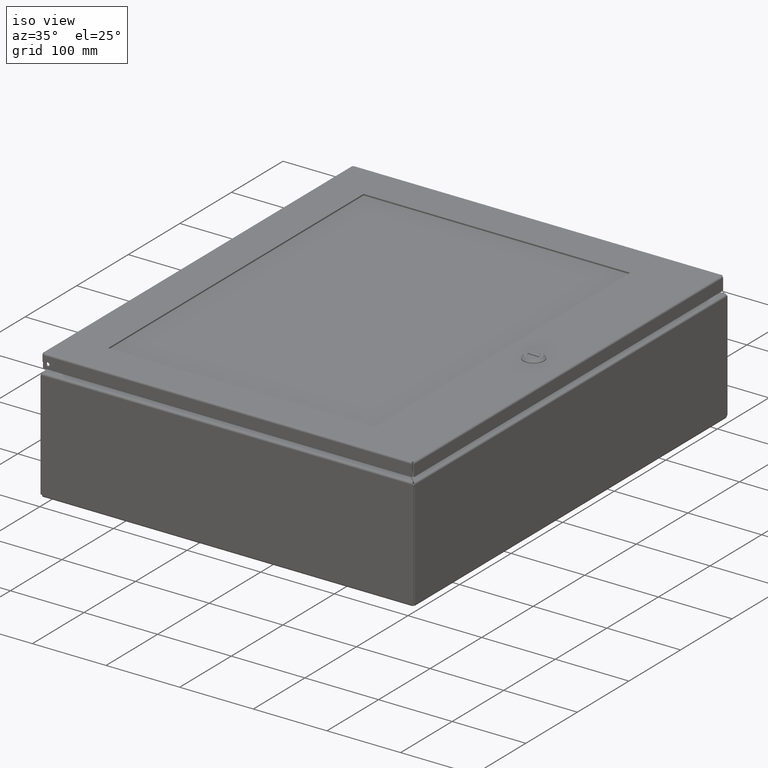
[diagram: clean part render]
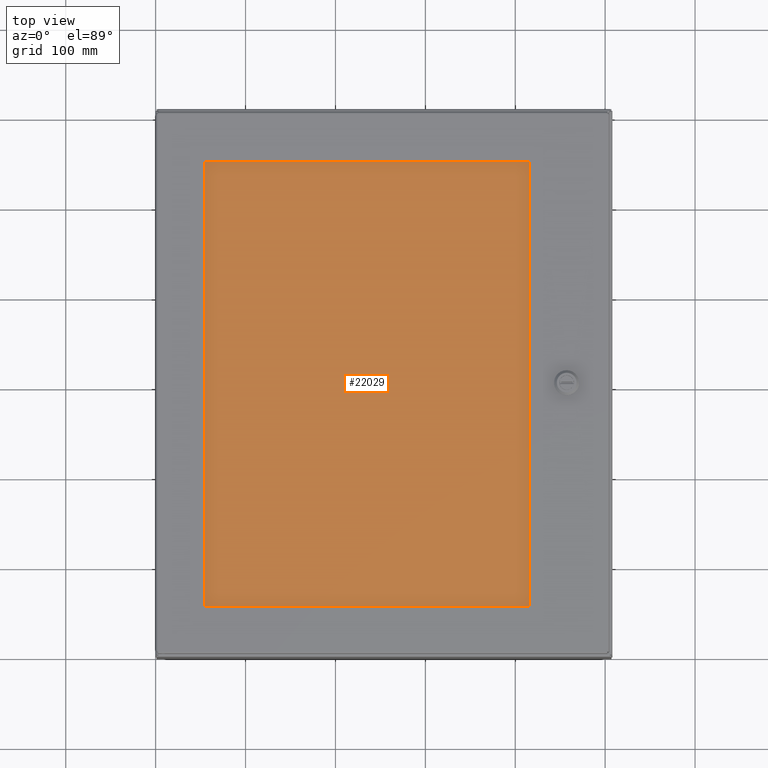
[diagram: tour spotlight — one face highlighted and labeled with its STEP entity id]
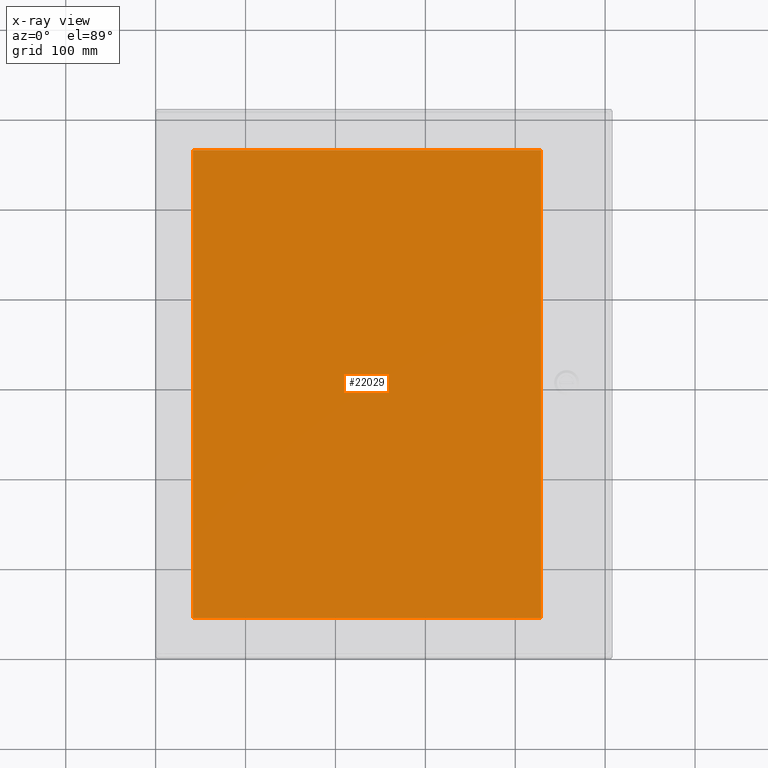
[diagram: x-ray of the same camera — body ghosted, this tour face saturated]
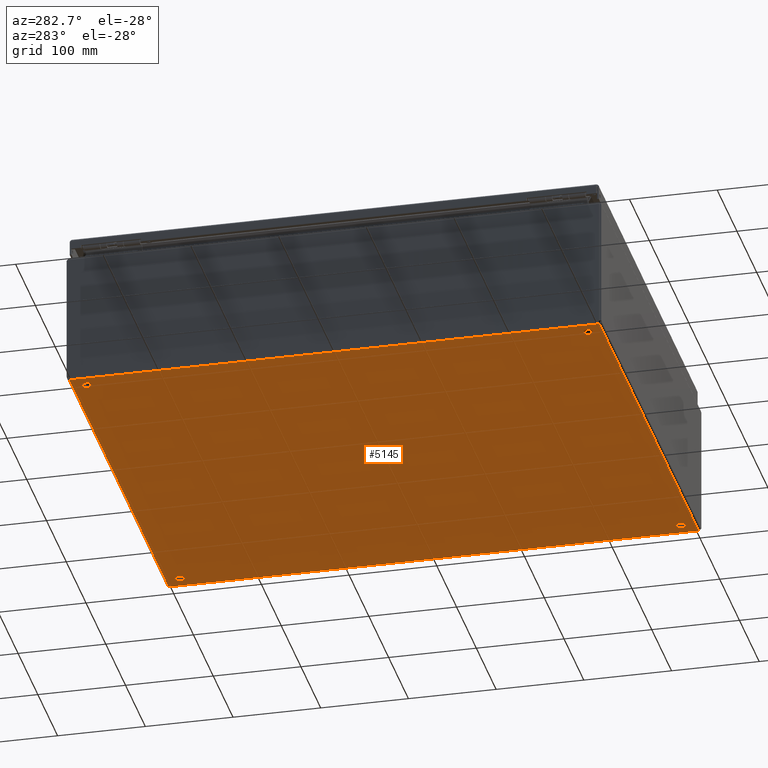
[diagram: tour spotlight — one face highlighted and labeled with its STEP entity id]
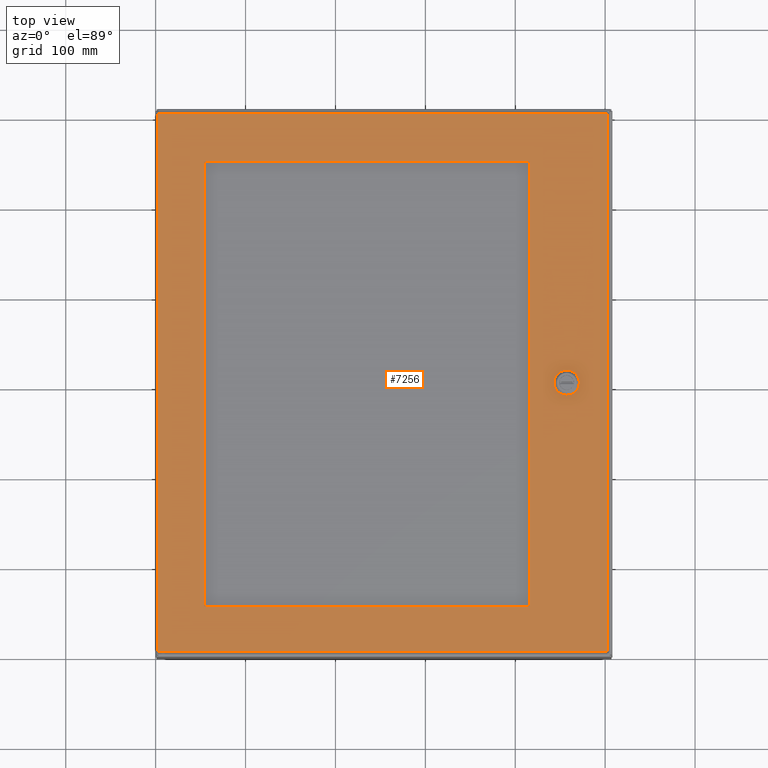
[diagram: tour spotlight — one face highlighted and labeled with its STEP entity id]
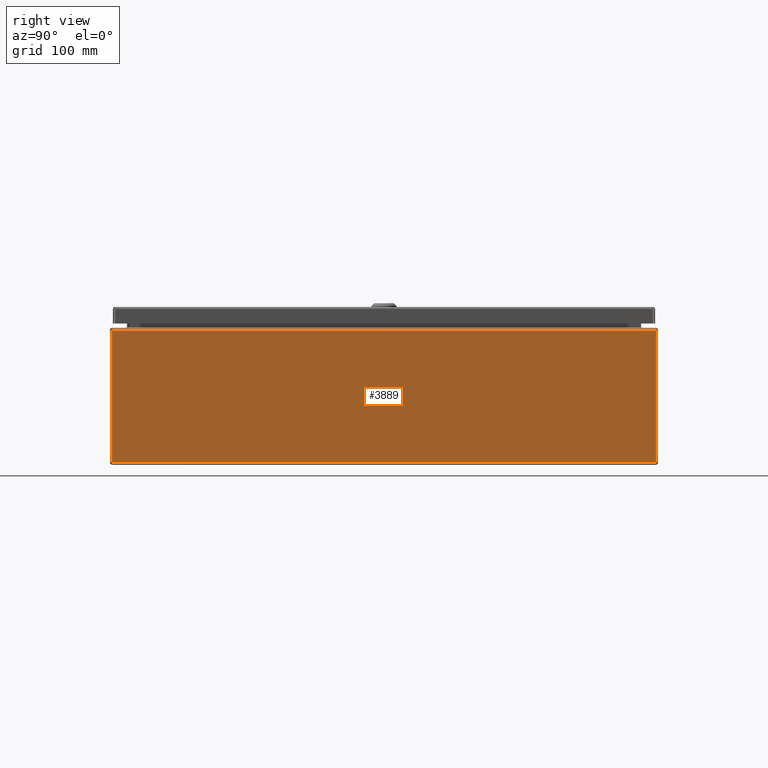
[diagram: tour spotlight — one face highlighted and labeled with its STEP entity id]
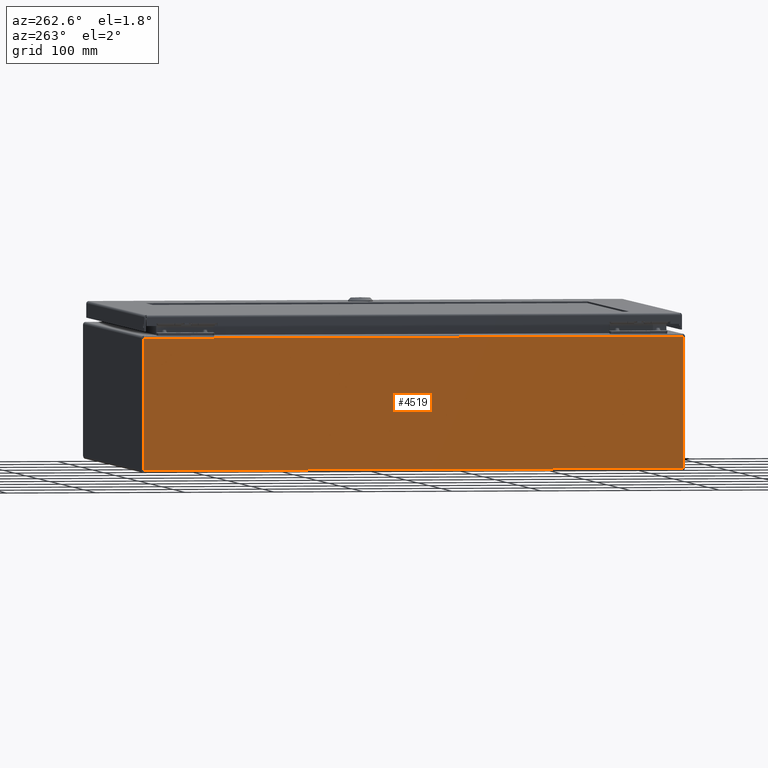
[diagram: tour spotlight — one face highlighted and labeled with its STEP entity id]
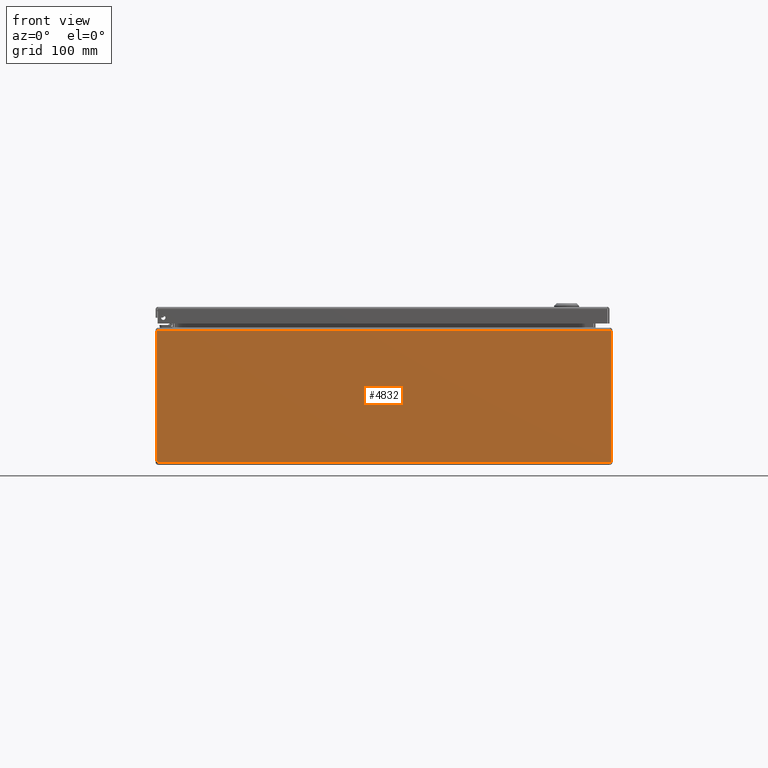
[diagram: tour spotlight — one face highlighted and labeled with its STEP entity id]
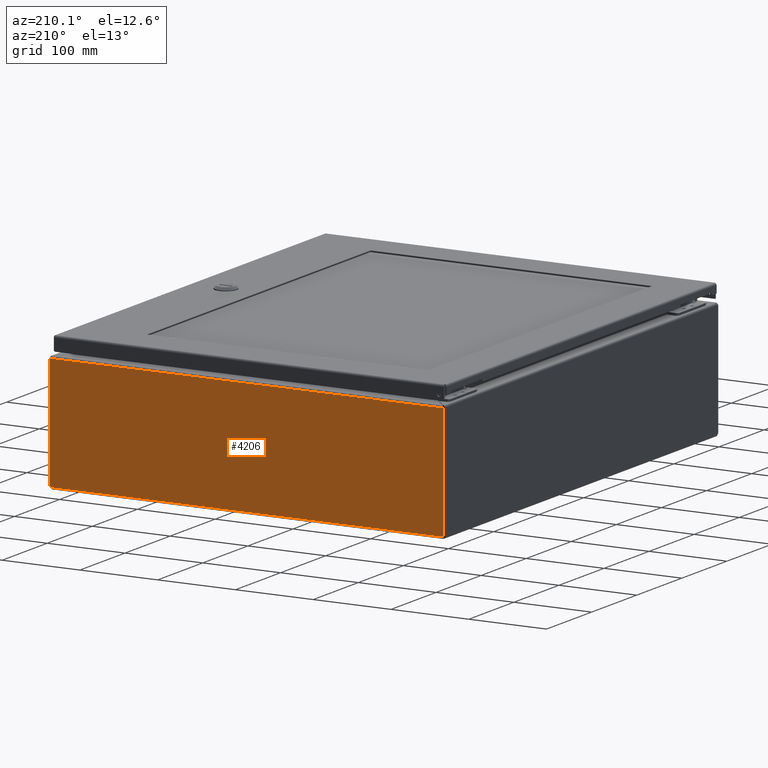
[diagram: tour spotlight — one face highlighted and labeled with its STEP entity id]
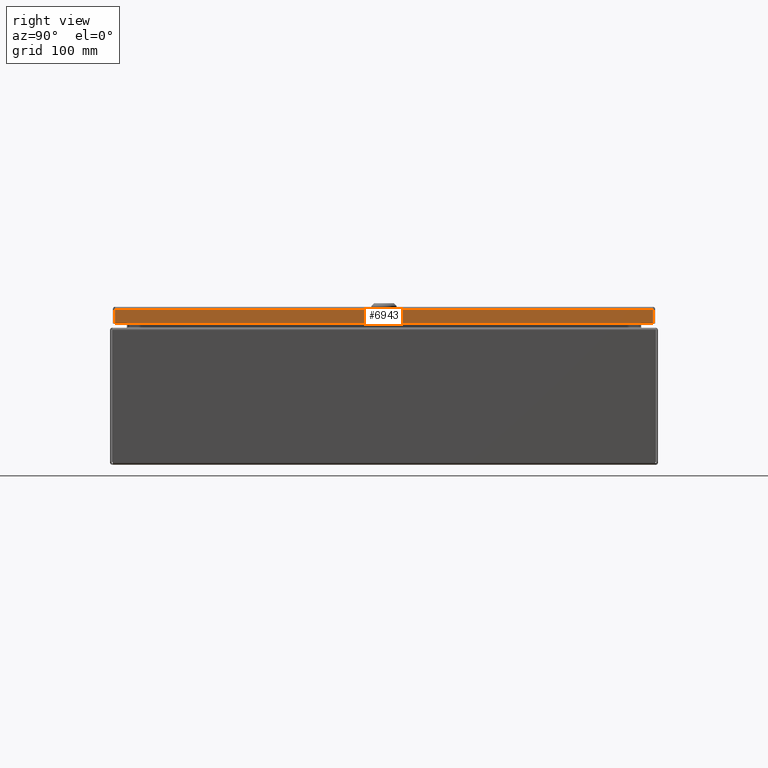
[diagram: tour spotlight — one face highlighted and labeled with its STEP entity id]
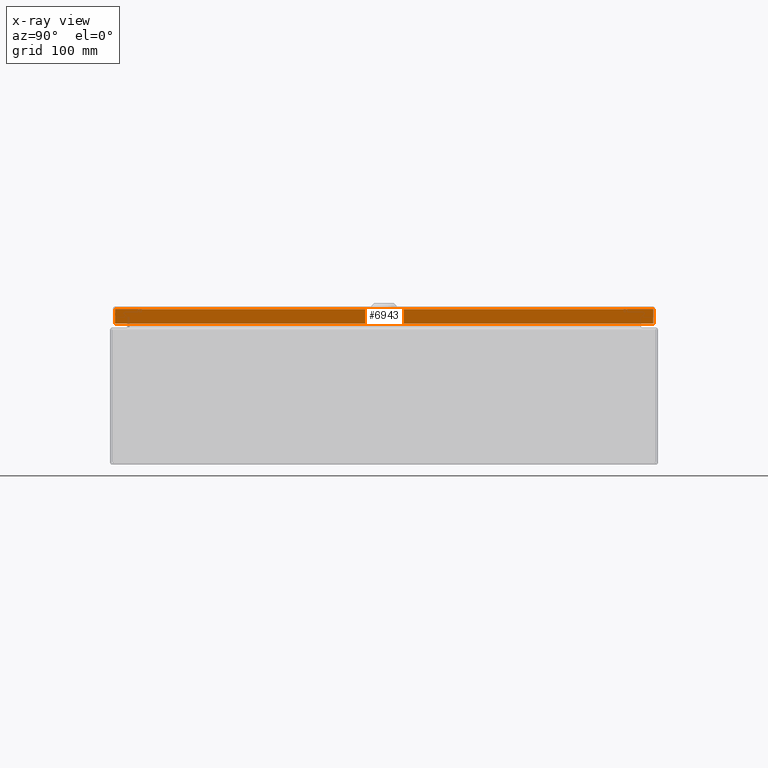
[diagram: x-ray of the same camera — body ghosted, this tour face saturated]
A machine part: a face-by-face anatomy tour. The part has 2085 B-rep faces; the first image is the clean iso view, then the 8 largest visible faces are spotlighted one at a time (largest first), each with its STEP entity span.

Face 1 — top view, entity #22029. An x-ray twin of the same camera follows (body ghosted, this face saturated) — the face is partly hidden behind the body. In plain terms, the highlighted planar face has unit normal (-0, -0, 1).
Definition (entity closure, byte-faithful):
#21887=CARTESIAN_POINT('',(0.0,0.0,0.250000000000000));
#21888=VERTEX_POINT('',#21887);
#21889=CARTESIAN_POINT('',(-6.276315E-015,20.500000000000000,0.250000000000000));
#21890=VERTEX_POINT('',#21889);
#21891=CARTESIAN_POINT('',(-7.888609E-031,0.0,0.250000000000000));
#21892=DIRECTION('',(0.0,1.0,0.0));
#21893=VECTOR('',#21892,20.500000000000000);
#21894=LINE('',#21891,#21893);
#21895=EDGE_CURVE('',#21888,#21890,#21894,.T.);
#21927=CARTESIAN_POINT('',(15.249999999999995,20.500000000000000,0.250000000000000));
#21928=VERTEX_POINT('',#21927);
#21929=CARTESIAN_POINT('',(-5.329071E-015,20.500000000000004,0.250000000000000));
#21930=DIRECTION('',(1.0,0.0,0.0));
#21931=VECTOR('',#21930,15.250000000000000);
#21932=LINE('',#21929,#21931);
#21933=EDGE_CURVE('',#21890,#21928,#21932,.T.);
#21958=CARTESIAN_POINT('',(15.250000000000000,1.552876E-031,0.250000000000000));
#21959=VERTEX_POINT('',#21958);
#21960=CARTESIAN_POINT('',(15.249999999999995,20.500000000000000,0.250000000000000));
#21961=DIRECTION('',(0.0,-1.0,0.0));
#21962=VECTOR('',#21961,20.500000000000000);
#21963=LINE('',#21960,#21962);
#21964=EDGE_CURVE('',#21928,#21959,#21963,.T.);
#21989=CARTESIAN_POINT('',(15.250000000000000,1.552876E-031,0.250000000000000));
#21990=DIRECTION('',(-1.0,0.0,0.0));
#21991=VECTOR('',#21990,15.250000000000000);
#21992=LINE('',#21989,#21991);
#21993=EDGE_CURVE('',#21959,#21888,#21992,.T.);
#22018=CARTESIAN_POINT('',(7.624999999999999,10.250000000000000,0.250000000000000));
#22019=DIRECTION('',(0.0,0.0,1.0));
#22020=DIRECTION('',(1.0,0.0,0.0));
#22021=AXIS2_PLACEMENT_3D('',#22018,#22019,#22020);
#22022=PLANE('',#22021);
#22023=ORIENTED_EDGE('',*,*,#21895,.F.);
#22024=ORIENTED_EDGE('',*,*,#21993,.F.);
#22025=ORIENTED_EDGE('',*,*,#21964,.F.);
#22026=ORIENTED_EDGE('',*,*,#21933,.F.);
#22027=EDGE_LOOP('',(#22023,#22024,#22025,#22026));
#22028=FACE_OUTER_BOUND('',#22027,.T.);
#22029=ADVANCED_FACE('',(#22028),#22022,.T.);

Face 2 — auxiliary view, entity #5145. In plain terms, the highlighted planar face has unit normal (0, 0, 1).
Definition (entity closure, byte-faithful):
#247=CARTESIAN_POINT('',(0.531249999999996,0.750000000000002,0.0));
#248=VERTEX_POINT('',#247);
#249=CARTESIAN_POINT('',(0.749999999999996,0.750000000000002,0.0));
#250=DIRECTION('',(0.0,0.0,1.0));
#251=DIRECTION('',(1.0,0.0,0.0));
#252=AXIS2_PLACEMENT_3D('',#249,#250,#251);
#253=CIRCLE('',#252,0.218750000000000);
#254=EDGE_CURVE('',#248,#248,#253,.T.);
#275=CARTESIAN_POINT('',(19.031249999999982,0.750000000000002,0.0));
#276=VERTEX_POINT('',#275);
#277=CARTESIAN_POINT('',(19.249999999999982,0.750000000000002,0.0));
#278=DIRECTION('',(0.0,0.0,1.0));
#279=DIRECTION('',(1.0,0.0,0.0));
#280=AXIS2_PLACEMENT_3D('',#277,#278,#279);
#281=CIRCLE('',#280,0.218750000000000);
#282=EDGE_CURVE('',#276,#276,#281,.T.);
#303=CARTESIAN_POINT('',(0.531249999999996,23.250000000000004,0.0));
#304=VERTEX_POINT('',#303);
#305=CARTESIAN_POINT('',(0.749999999999996,23.250000000000004,0.0));
#306=DIRECTION('',(0.0,0.0,1.0));
#307=DIRECTION('',(1.0,0.0,0.0));
#308=AXIS2_PLACEMENT_3D('',#305,#306,#307);
#309=CIRCLE('',#308,0.218750000000000);
#310=EDGE_CURVE('',#304,#304,#309,.T.);
#331=CARTESIAN_POINT('',(19.031249999999982,23.250000000000004,0.0));
#332=VERTEX_POINT('',#331);
#333=CARTESIAN_POINT('',(19.249999999999982,23.250000000000004,0.0));
#334=DIRECTION('',(0.0,0.0,1.0));
#335=DIRECTION('',(1.0,0.0,0.0));
#336=AXIS2_PLACEMENT_3D('',#333,#334,#335);
#337=CIRCLE('',#336,0.218750000000000);
#338=EDGE_CURVE('',#332,#332,#337,.T.);
#3923=CARTESIAN_POINT('',(19.894749999999991,23.886393473394307,0.0));
#3924=VERTEX_POINT('',#3923);
#4021=CARTESIAN_POINT('',(19.894749999999995,0.113606526605712,0.0));
#4022=VERTEX_POINT('',#4021);
#4065=CARTESIAN_POINT('',(19.894749999999991,23.886393473394307,0.0));
#4066=DIRECTION('',(0.0,-1.0,0.0));
#4067=VECTOR('',#4066,23.772786946788592);
#4068=LINE('',#4065,#4067);
#4069=EDGE_CURVE('',#3924,#4022,#4068,.T.);
#4240=CARTESIAN_POINT('',(0.113606526605698,23.894750000000002,2.797412E-015));
#4241=VERTEX_POINT('',#4240);
#4338=CARTESIAN_POINT('',(19.886393473394293,23.894750000000002,0.0));
#4339=VERTEX_POINT('',#4338);
#4382=CARTESIAN_POINT('',(0.113606526605698,23.894750000000002,0.0));
#4383=DIRECTION('',(1.0,0.0,0.0));
#4384=VECTOR('',#4383,19.772786946788596);
#4385=LINE('',#4382,#4384);
#4386=EDGE_CURVE('',#4241,#4339,#4385,.T.);
#4553=CARTESIAN_POINT('',(0.105250000000002,0.113606526605707,0.0));
#4554=VERTEX_POINT('',#4553);
#4651=CARTESIAN_POINT('',(0.105249999999995,23.886393473394300,0.0));
#4652=VERTEX_POINT('',#4651);
#4695=CARTESIAN_POINT('',(0.105250000000002,0.113606526605707,0.0));
#4696=DIRECTION('',(0.0,1.0,0.0));
#4697=VECTOR('',#4696,23.772786946788592);
#4698=LINE('',#4695,#4697);
#4699=EDGE_CURVE('',#4554,#4652,#4698,.T.);
#4866=CARTESIAN_POINT('',(19.886393473394286,0.105250000000001,0.0));
#4867=VERTEX_POINT('',#4866);
#4922=CARTESIAN_POINT('',(0.113606526605708,0.105250000000001,0.0));
#4923=VERTEX_POINT('',#4922);
#4937=CARTESIAN_POINT('',(19.886393473394286,0.105250000000001,0.0));
#4938=DIRECTION('',(-1.0,0.0,0.0));
#4939=VECTOR('',#4938,19.772786946788578);
#4940=LINE('',#4937,#4939);
#4941=EDGE_CURVE('',#4867,#4923,#4940,.T.);
#5032=CARTESIAN_POINT('',(0.061526884243666,0.061526884243666,0.0));
#5033=DIRECTION('',(0.0,0.0,1.0));
#5034=DIRECTION('',(1.0,0.0,0.0));
#5035=AXIS2_PLACEMENT_3D('',#5032,#5033,#5034);
#5036=CIRCLE('',#5035,0.068000000000000);
#5037=EDGE_CURVE('',#4923,#4554,#5036,.T.);
#5094=CARTESIAN_POINT('',(19.938473115756331,0.061526884243670,0.0));
#5095=DIRECTION('',(0.0,0.0,1.0));
#5096=DIRECTION('',(1.0,0.0,0.0));
#5097=AXIS2_PLACEMENT_3D('',#5094,#5095,#5096);
#5098=CIRCLE('',#5097,0.068000000000000);
#5099=EDGE_CURVE('',#4022,#4867,#5098,.T.);
#5106=CARTESIAN_POINT('',(9.999999999999996,12.000000000000004,0.0));
#5107=DIRECTION('',(0.0,0.0,1.0));
#5108=DIRECTION('',(1.0,0.0,0.0));
#5109=AXIS2_PLACEMENT_3D('',#5106,#5107,#5108);
#5110=PLANE('',#5109);
#5111=ORIENTED_EDGE('',*,*,#4941,.T.);
#5112=ORIENTED_EDGE('',*,*,#5037,.T.);
#5113=ORIENTED_EDGE('',*,*,#4699,.T.);
#5114=CARTESIAN_POINT('',(0.061526884243656,23.938473115756338,0.0));
#5115=DIRECTION('',(0.0,0.0,1.0));
#5116=DIRECTION('',(1.0,0.0,0.0));
#5117=AXIS2_PLACEMENT_3D('',#5114,#5115,#5116);
#5118=CIRCLE('',#5117,0.068000000000000);
#5119=EDGE_CURVE('',#4652,#4241,#5118,.T.);
#5120=ORIENTED_EDGE('',*,*,#5119,.T.);
#5121=ORIENTED_EDGE('',*,*,#4386,.T.);
#5122=CARTESIAN_POINT('',(19.938473115756331,23.938473115756342,0.0));
#5123=DIRECTION('',(0.0,0.0,1.0));
#5124=DIRECTION('',(1.0,0.0,0.0));
#5125=AXIS2_PLACEMENT_3D('',#5122,#5123,#5124);
#5126=CIRCLE('',#5125,0.068000000000000);
#5127=EDGE_CURVE('',#4339,#3924,#5126,.T.);
#5128=ORIENTED_EDGE('',*,*,#5127,.T.);
#5129=ORIENTED_EDGE('',*,*,#4069,.T.);
#5130=ORIENTED_EDGE('',*,*,#5099,.T.);
#5131=EDGE_LOOP('',(#5111,#5112,#5113,#5120,#5121,#5128,#5129,#5130));
#5132=FACE_OUTER_BOUND('',#5131,.T.);
#5133=ORIENTED_EDGE('',*,*,#254,.T.);
#5134=EDGE_LOOP('',(#5133));
#5135=FACE_BOUND('',#5134,.T.);
#5136=ORIENTED_EDGE('',*,*,#282,.T.);
#5137=EDGE_LOOP('',(#5136));
#5138=FACE_BOUND('',#5137,.T.);
#5139=ORIENTED_EDGE('',*,*,#310,.T.);
#5140=EDGE_LOOP('',(#5139));
#5141=FACE_BOUND('',#5140,.T.);
#5142=ORIENTED_EDGE('',*,*,#338,.T.);
#5143=EDGE_LOOP('',(#5142));
#5144=FACE_BOUND('',#5143,.T.);
#5145=ADVANCED_FACE('',(#5132,#5135,#5138,#5141,#5144),#5110,.F.);

Face 3 — top view, entity #7256. In plain terms, the highlighted planar face has unit normal (-0, 0, -1).
Definition (entity closure, byte-faithful):
#5448=CARTESIAN_POINT('',(17.750000000000000,21.562500000000011,0.0));
#5449=VERTEX_POINT('',#5448);
#5456=CARTESIAN_POINT('',(17.749999999999989,2.062500000000010,0.0));
#5457=VERTEX_POINT('',#5456);
#5458=CARTESIAN_POINT('',(17.749999999999993,2.062500000000009,0.0));
#5459=DIRECTION('',(0.0,1.0,0.0));
#5460=VECTOR('',#5459,19.500000000000000);
#5461=LINE('',#5458,#5460);
#5462=EDGE_CURVE('',#5457,#5449,#5461,.T.);
#5487=CARTESIAN_POINT('',(3.500000000000003,2.062500000000013,0.0));
#5488=VERTEX_POINT('',#5487);
#5489=CARTESIAN_POINT('',(3.500000000000004,2.062500000000013,0.0));
#5490=DIRECTION('',(1.0,0.0,0.0));
#5491=VECTOR('',#5490,14.249999999999986);
#5492=LINE('',#5489,#5491);
#5493=EDGE_CURVE('',#5488,#5457,#5492,.T.);
#5518=CARTESIAN_POINT('',(3.499999999999997,21.562500000000011,0.0));
#5519=VERTEX_POINT('',#5518);
#5520=CARTESIAN_POINT('',(3.499999999999997,21.562500000000007,0.0));
#5521=DIRECTION('',(0.0,-1.0,0.0));
#5522=VECTOR('',#5521,19.499999999999993);
#5523=LINE('',#5520,#5522);
#5524=EDGE_CURVE('',#5519,#5488,#5523,.T.);
#5547=CARTESIAN_POINT('',(17.750000000000000,21.562500000000011,0.0));
#5548=DIRECTION('',(-1.0,0.0,0.0));
#5549=VECTOR('',#5548,14.250000000000004);
#5550=LINE('',#5547,#5549);
#5551=EDGE_CURVE('',#5449,#5519,#5550,.T.);
#5573=CARTESIAN_POINT('',(2.087624081420700,12.275000000000000,0.0));
#5574=VERTEX_POINT('',#5573);
#5581=CARTESIAN_POINT('',(2.274999999999992,12.087624081420714,0.0));
#5582=VERTEX_POINT('',#5581);
#5583=CARTESIAN_POINT('',(1.874999999999996,11.874999999999998,0.0));
#5584=DIRECTION('',(0.0,0.0,1.0));
#5585=DIRECTION('',(-0.469368833158288,-0.883002207505523,0.0));
#5586=AXIS2_PLACEMENT_3D('',#5583,#5584,#5585);
#5587=CIRCLE('',#5586,0.453000000000000);
#5588=EDGE_CURVE('',#5582,#5574,#5587,.T.);
#5613=CARTESIAN_POINT('',(2.274999999999992,11.662375918579283,0.0));
#5614=VERTEX_POINT('',#5613);
#5615=CARTESIAN_POINT('',(2.274999999999992,11.662375918579283,0.0));
#5616=DIRECTION('',(0.0,1.0,0.0));
#5617=VECTOR('',#5616,0.425248162841431);
#5618=LINE('',#5615,#5617);
#5619=EDGE_CURVE('',#5614,#5582,#5618,.T.);
#5645=CARTESIAN_POINT('',(2.087624081420711,11.475000000000001,0.0));
#5646=VERTEX_POINT('',#5645);
#5647=CARTESIAN_POINT('',(1.874999999999996,11.874999999999998,0.0));
#5648=DIRECTION('',(0.0,0.0,1.0));
#5649=DIRECTION('',(-0.883002207505511,0.469368833158312,0.0));
#5650=AXIS2_PLACEMENT_3D('',#5647,#5648,#5649);
#5651=CIRCLE('',#5650,0.453000000000000);
#5652=EDGE_CURVE('',#5646,#5614,#5651,.T.);
#5677=CARTESIAN_POINT('',(1.662375918579281,11.475000000000001,0.0));
#5678=VERTEX_POINT('',#5677);
#5679=CARTESIAN_POINT('',(1.662375918579280,11.475000000000001,0.0));
#5680=DIRECTION('',(1.0,0.0,0.0));
#5681=VECTOR('',#5680,0.425248162841431);
#5682=LINE('',#5679,#5681);
#5683=EDGE_CURVE('',#5678,#5646,#5682,.T.);
#5709=CARTESIAN_POINT('',(1.474999999999992,11.662375918579297,0.0));
#5710=VERTEX_POINT('',#5709);
#5711=CARTESIAN_POINT('',(1.874999999999996,11.874999999999998,0.0));
#5712=DIRECTION('',(0.0,0.0,1.0));
#5713=DIRECTION('',(0.469368833158311,0.883002207505511,0.0));
#5714=AXIS2_PLACEMENT_3D('',#5711,#5712,#5713);
#5715=CIRCLE('',#5714,0.453000000000000);
#5716=EDGE_CURVE('',#5710,#5678,#5715,.T.);
#5741=CARTESIAN_POINT('',(1.474999999999992,12.087624081420699,0.0));
#5742=VERTEX_POINT('',#5741);
#5743=CARTESIAN_POINT('',(1.474999999999992,12.087624081420699,0.0));
#5744=DIRECTION('',(0.0,-1.0,0.0));
#5745=VECTOR('',#5744,0.425248162841402);
#5746=LINE('',#5743,#5745);
#5747=EDGE_CURVE('',#5742,#5710,#5746,.T.);
#5773=CARTESIAN_POINT('',(1.662375918579291,12.275000000000000,0.0));
#5774=VERTEX_POINT('',#5773);
#5775=CARTESIAN_POINT('',(1.874999999999996,11.874999999999998,0.0));
#5776=DIRECTION('',(0.0,0.0,1.0));
#5777=DIRECTION('',(0.883002207505527,-0.469368833158281,0.0));
#5778=AXIS2_PLACEMENT_3D('',#5775,#5776,#5777);
#5779=CIRCLE('',#5778,0.453000000000000);
#5780=EDGE_CURVE('',#5774,#5742,#5779,.T.);
#5803=CARTESIAN_POINT('',(2.087624081420699,12.275000000000000,0.0));
#5804=DIRECTION('',(-1.0,0.0,0.0));
#5805=VECTOR('',#5804,0.425248162841408);
#5806=LINE('',#5803,#5805);
#5807=EDGE_CURVE('',#5574,#5774,#5806,.T.);
#6258=CARTESIAN_POINT('',(19.769750000000002,0.105249999999998,-3.278218E-017));
#6259=VERTEX_POINT('',#6258);
#6270=CARTESIAN_POINT('',(19.769749999999995,23.644750000000009,-2.185478E-017));
#6271=VERTEX_POINT('',#6270);
#6272=CARTESIAN_POINT('',(19.769749999999995,23.644750000000009,0.0));
#6273=DIRECTION('',(0.0,-1.0,0.0));
#6274=VECTOR('',#6273,23.539500000000011);
#6275=LINE('',#6272,#6274);
#6276=EDGE_CURVE('',#6271,#6259,#6275,.T.);
#6428=CARTESIAN_POINT('',(0.105249999999999,0.105250000000000,-3.278218E-017));
#6429=VERTEX_POINT('',#6428);
#6440=CARTESIAN_POINT('',(19.769750000000002,0.105249999999998,0.0));
#6441=DIRECTION('',(-1.0,0.0,0.0));
#6442=VECTOR('',#6441,19.664500000000004);
#6443=LINE('',#6440,#6442);
#6444=EDGE_CURVE('',#6259,#6429,#6443,.T.);
#6705=CARTESIAN_POINT('',(0.105249999999990,23.644750000000005,-2.185478E-017));
#6706=VERTEX_POINT('',#6705);
#6717=CARTESIAN_POINT('',(0.105249999999999,0.105250000000000,0.0));
#6718=DIRECTION('',(0.0,1.0,0.0));
#6719=VECTOR('',#6718,23.539500000000004);
#6720=LINE('',#6717,#6719);
#6721=EDGE_CURVE('',#6429,#6706,#6720,.T.);
#6986=CARTESIAN_POINT('',(0.105249999999990,23.644750000000005,0.0));
#6987=DIRECTION('',(1.0,0.0,0.0));
#6988=VECTOR('',#6987,19.664500000000004);
#6989=LINE('',#6986,#6988);
#6990=EDGE_CURVE('',#6706,#6271,#6989,.T.);
#7229=CARTESIAN_POINT('',(9.937499999999995,11.875000000000002,0.0));
#7230=DIRECTION('',(0.0,0.0,1.0));
#7231=DIRECTION('',(1.0,0.0,0.0));
#7232=AXIS2_PLACEMENT_3D('',#7229,#7230,#7231);
#7233=PLANE('',#7232);
#7234=ORIENTED_EDGE('',*,*,#6276,.T.);
#7235=ORIENTED_EDGE('',*,*,#6444,.T.);
#7236=ORIENTED_EDGE('',*,*,#6721,.T.);
#7237=ORIENTED_EDGE('',*,*,#6990,.T.);
#7238=EDGE_LOOP('',(#7234,#7235,#7236,#7237));
#7239=FACE_OUTER_BOUND('',#7238,.T.);
#7240=ORIENTED_EDGE('',*,*,#5462,.T.);
#7241=ORIENTED_EDGE('',*,*,#5551,.T.);
#7242=ORIENTED_EDGE('',*,*,#5524,.T.);
#7243=ORIENTED_EDGE('',*,*,#5493,.T.);
#7244=EDGE_LOOP('',(#7240,#7241,#7242,#7243));
#7245=FACE_BOUND('',#7244,.T.);
#7246=ORIENTED_EDGE('',*,*,#5588,.T.);
#7247=ORIENTED_EDGE('',*,*,#5807,.T.);
#7248=ORIENTED_EDGE('',*,*,#5780,.T.);
#7249=ORIENTED_EDGE('',*,*,#5747,.T.);
#7250=ORIENTED_EDGE('',*,*,#5716,.T.);
#7251=ORIENTED_EDGE('',*,*,#5683,.T.);
#7252=ORIENTED_EDGE('',*,*,#5652,.T.);
#7253=ORIENTED_EDGE('',*,*,#5619,.T.);
#7254=EDGE_LOOP('',(#7246,#7247,#7248,#7249,#7250,#7251,#7252,#7253));
#7255=FACE_BOUND('',#7254,.T.);
#7256=ADVANCED_FACE('',(#7239,#7245,#7255),#7233,.F.);

Face 4 — right view, entity #3889. In plain terms, the highlighted planar face has unit normal (-1, 0, 0).
Definition (entity closure, byte-faithful):
#2701=CARTESIAN_POINT('',(20.000000000000011,23.914951456543665,5.894749999999996));
#2702=VERTEX_POINT('',#2701);
#2734=CARTESIAN_POINT('',(20.000000000000014,0.085048543456039,5.894749999999996));
#2735=VERTEX_POINT('',#2734);
#2749=CARTESIAN_POINT('',(20.000000000000014,23.914951456543665,5.894749999999998));
#2750=DIRECTION('',(0.0,-1.0,0.0));
#2751=VECTOR('',#2750,23.829902913087629);
#2752=LINE('',#2749,#2751);
#2753=EDGE_CURVE('',#2702,#2735,#2752,.T.);
#3404=CARTESIAN_POINT('',(20.000000000000021,0.080000000000002,5.894749999999998));
#3405=VERTEX_POINT('',#3404);
#3412=CARTESIAN_POINT('',(20.000000000000018,0.085048543456036,5.894749999999998));
#3413=DIRECTION('',(0.0,-1.0,0.0));
#3414=VECTOR('',#3413,0.005048543456038);
#3415=LINE('',#3412,#3414);
#3416=EDGE_CURVE('',#2735,#3405,#3415,.T.);
#3582=CARTESIAN_POINT('',(20.000000000000014,23.919999999999995,5.894749999999998));
#3583=VERTEX_POINT('',#3582);
#3584=CARTESIAN_POINT('',(20.000000000000014,23.919999999999995,5.894749999999998));
#3585=DIRECTION('',(0.0,-1.0,0.0));
#3586=VECTOR('',#3585,0.005048543456329);
#3587=LINE('',#3584,#3586);
#3588=EDGE_CURVE('',#3583,#2702,#3587,.T.);
#3613=CARTESIAN_POINT('',(19.999999999999989,23.920000000000002,0.126969561406606));
#3614=VERTEX_POINT('',#3613);
#3615=CARTESIAN_POINT('',(20.000000000000018,23.920000000000002,5.894749999999997));
#3616=DIRECTION('',(0.0,0.0,-1.0));
#3617=VECTOR('',#3616,5.767780438593391);
#3618=LINE('',#3615,#3617);
#3619=EDGE_CURVE('',#3583,#3614,#3618,.T.);
#3777=CARTESIAN_POINT('',(19.999999999999989,0.113606526605712,0.105249999999996));
#3778=VERTEX_POINT('',#3777);
#3785=CARTESIAN_POINT('',(19.999999999999993,0.080000000000006,0.126969561406606));
#3786=VERTEX_POINT('',#3785);
#3787=CARTESIAN_POINT('',(19.999999999999989,0.061526884243669,0.061526884243664));
#3788=DIRECTION('',(-1.0,0.0,0.0));
#3789=DIRECTION('',(0.0,0.0,1.0));
#3790=AXIS2_PLACEMENT_3D('',#3787,#3788,#3789);
#3791=CIRCLE('',#3790,0.068000000000000);
#3792=EDGE_CURVE('',#3786,#3778,#3791,.T.);
#3856=CARTESIAN_POINT('',(20.000000000000004,12.000000000000002,3.008901884243668));
#3857=DIRECTION('',(-1.0,0.0,0.0));
#3858=DIRECTION('',(0.0,0.0,1.0));
#3859=AXIS2_PLACEMENT_3D('',#3856,#3857,#3858);
#3860=PLANE('',#3859);
#3861=ORIENTED_EDGE('',*,*,#3588,.T.);
#3862=ORIENTED_EDGE('',*,*,#2753,.T.);
#3863=ORIENTED_EDGE('',*,*,#3416,.T.);
#3864=CARTESIAN_POINT('',(19.999999999999989,0.080000000000002,0.126969561406606));
#3865=DIRECTION('',(0.0,0.0,1.0));
#3866=VECTOR('',#3865,5.767780438593391);
#3867=LINE('',#3864,#3866);
#3868=EDGE_CURVE('',#3786,#3405,#3867,.T.);
#3869=ORIENTED_EDGE('',*,*,#3868,.F.);
#3870=ORIENTED_EDGE('',*,*,#3792,.T.);
#3871=CARTESIAN_POINT('',(19.999999999999986,23.886393473394293,0.105250000000001));
#3872=VERTEX_POINT('',#3871);
#3873=CARTESIAN_POINT('',(19.999999999999993,0.113606526605713,0.105249999999998));
#3874=DIRECTION('',(0.0,1.0,0.0));
#3875=VECTOR('',#3874,23.772786946788578);
#3876=LINE('',#3873,#3875);
#3877=EDGE_CURVE('',#3778,#3872,#3876,.T.);
#3878=ORIENTED_EDGE('',*,*,#3877,.T.);
#3879=CARTESIAN_POINT('',(19.999999999999982,23.938473115756331,0.061526884243661));
#3880=DIRECTION('',(-1.0,0.0,0.0));
#3881=DIRECTION('',(0.0,0.0,1.0));
#3882=AXIS2_PLACEMENT_3D('',#3879,#3880,#3881);
#3883=CIRCLE('',#3882,0.068000000000000);
#3884=EDGE_CURVE('',#3872,#3614,#3883,.T.);
#3885=ORIENTED_EDGE('',*,*,#3884,.T.);
#3886=ORIENTED_EDGE('',*,*,#3619,.F.);
#3887=EDGE_LOOP('',(#3861,#3862,#3863,#3869,#3870,#3878,#3885,#3886));
#3888=FACE_OUTER_BOUND('',#3887,.T.);
#3889=ADVANCED_FACE('',(#3888),#3860,.F.);

Face 5 — auxiliary view, entity #4519. In plain terms, the highlighted planar face has unit normal (1, 0, 0).
Definition (entity closure, byte-faithful):
#3092=CARTESIAN_POINT('',(6.020993E-015,0.085048543456045,5.894749999999999));
#3093=VERTEX_POINT('',#3092);
#3122=CARTESIAN_POINT('',(-2.764630E-015,23.914951456543648,5.894750000000002));
#3123=VERTEX_POINT('',#3122);
#3137=CARTESIAN_POINT('',(2.009060E-015,0.085048543456044,5.894750000000000));
#3138=DIRECTION('',(0.0,1.0,0.0));
#3139=VECTOR('',#3138,23.829902913087604);
#3140=LINE('',#3137,#3139);
#3141=EDGE_CURVE('',#3093,#3123,#3140,.T.);
#3466=CARTESIAN_POINT('',(-5.267003E-015,23.919999999999998,5.894750000000004));
#3467=VERTEX_POINT('',#3466);
#3474=CARTESIAN_POINT('',(-5.287210E-015,23.914951456543648,5.894750000000003));
#3475=DIRECTION('',(0.0,1.0,0.0));
#3476=VECTOR('',#3475,0.005048543456354);
#3477=LINE('',#3474,#3476);
#3478=EDGE_CURVE('',#3123,#3467,#3477,.T.);
#3644=CARTESIAN_POINT('',(2.032495E-015,0.080000000000001,5.894750000000001));
#3645=VERTEX_POINT('',#3644);
#3646=CARTESIAN_POINT('',(2.010606E-015,0.080000000000001,5.894750000000000));
#3647=DIRECTION('',(0.0,1.0,0.0));
#3648=VECTOR('',#3647,0.005048543456043);
#3649=LINE('',#3646,#3648);
#3650=EDGE_CURVE('',#3645,#3093,#3649,.T.);
#3675=CARTESIAN_POINT('',(1.920343E-015,0.080000000000000,0.126969561406607));
#3676=VERTEX_POINT('',#3675);
#3677=CARTESIAN_POINT('',(2.380417E-015,0.079999999999999,5.894750000000000));
#3678=DIRECTION('',(0.0,0.0,-1.0));
#3679=VECTOR('',#3678,5.767780438593393);
#3680=LINE('',#3677,#3679);
#3681=EDGE_CURVE('',#3645,#3676,#3680,.T.);
#4407=CARTESIAN_POINT('',(-4.919051E-015,23.886393473394293,0.105250000000000));
#4408=VERTEX_POINT('',#4407);
#4415=CARTESIAN_POINT('',(-5.378552E-015,23.919999999999998,0.126969561406608));
#4416=VERTEX_POINT('',#4415);
#4417=CARTESIAN_POINT('',(-4.932177E-015,23.938473115756338,0.061526884243668));
#4418=DIRECTION('',(1.0,0.0,0.0));
#4419=DIRECTION('',(0.0,0.0,-1.0));
#4420=AXIS2_PLACEMENT_3D('',#4417,#4418,#4419);
#4421=CIRCLE('',#4420,0.068000000000000);
#4422=EDGE_CURVE('',#4416,#4408,#4421,.T.);
#4486=CARTESIAN_POINT('',(-1.457543E-015,12.0,3.008901884243666));
#4487=DIRECTION('',(1.0,0.0,0.0));
#4488=DIRECTION('',(0.0,0.0,-1.0));
#4489=AXIS2_PLACEMENT_3D('',#4486,#4487,#4488);
#4490=PLANE('',#4489);
#4491=ORIENTED_EDGE('',*,*,#3650,.T.);
#4492=ORIENTED_EDGE('',*,*,#3141,.T.);
#4493=ORIENTED_EDGE('',*,*,#3478,.T.);
#4494=CARTESIAN_POINT('',(-4.930529E-015,23.920000000000002,0.126969561406608));
#4495=DIRECTION('',(0.0,0.0,1.0));
#4496=VECTOR('',#4495,5.767780438593396);
#4497=LINE('',#4494,#4496);
#4498=EDGE_CURVE('',#4416,#3467,#4497,.T.);
#4499=ORIENTED_EDGE('',*,*,#4498,.F.);
#4500=ORIENTED_EDGE('',*,*,#4422,.T.);
#4501=CARTESIAN_POINT('',(2.359498E-015,0.113606526605707,0.105250000000000));
#4502=VERTEX_POINT('',#4501);
#4503=CARTESIAN_POINT('',(-4.913679E-015,23.886393473394293,0.105250000000000));
#4504=DIRECTION('',(0.0,-1.0,0.0));
#4505=VECTOR('',#4504,23.772786946788585);
#4506=LINE('',#4503,#4505);
#4507=EDGE_CURVE('',#4408,#4502,#4506,.T.);
#4508=ORIENTED_EDGE('',*,*,#4507,.T.);
#4509=CARTESIAN_POINT('',(2.378029E-015,0.061526884243666,0.061526884243664));
#4510=DIRECTION('',(1.0,0.0,0.0));
#4511=DIRECTION('',(0.0,0.0,-1.0));
#4512=AXIS2_PLACEMENT_3D('',#4509,#4510,#4511);
#4513=CIRCLE('',#4512,0.068000000000000);
#4514=EDGE_CURVE('',#4502,#3676,#4513,.T.);
#4515=ORIENTED_EDGE('',*,*,#4514,.T.);
#4516=ORIENTED_EDGE('',*,*,#3681,.F.);
#4517=EDGE_LOOP('',(#4491,#4492,#4493,#4499,#4500,#4508,#4515,#4516));
#4518=FACE_OUTER_BOUND('',#4517,.T.);
#4519=ADVANCED_FACE('',(#4518),#4490,.F.);

Face 6 — front view, entity #4832. In plain terms, the highlighted planar face has unit normal (0, 1, 0).
Definition (entity closure, byte-faithful):
#3280=CARTESIAN_POINT('',(19.914951456543974,4.261683E-015,5.894749999999998));
#3281=VERTEX_POINT('',#3280);
#3310=CARTESIAN_POINT('',(0.085048543456042,4.239828E-015,5.894749999999998));
#3311=VERTEX_POINT('',#3310);
#3325=CARTESIAN_POINT('',(19.914951456543974,1.196665E-015,5.894750000000000));
#3326=DIRECTION('',(-1.0,0.0,0.0));
#3327=VECTOR('',#3326,19.829902913087935);
#3328=LINE('',#3325,#3327);
#3329=EDGE_CURVE('',#3281,#3311,#3328,.T.);
#3497=CARTESIAN_POINT('',(0.037000000000001,1.180158E-015,5.894750000000000));
#3498=VERTEX_POINT('',#3497);
#3505=CARTESIAN_POINT('',(0.085048543456042,1.196200E-015,5.894750000000000));
#3506=DIRECTION('',(-1.0,0.0,0.0));
#3507=VECTOR('',#3506,0.048048543456041);
#3508=LINE('',#3505,#3507);
#3509=EDGE_CURVE('',#3311,#3498,#3508,.T.);
#3520=CARTESIAN_POINT('',(19.963000000000001,1.180158E-015,5.894750000000000));
#3521=VERTEX_POINT('',#3520);
#3522=CARTESIAN_POINT('',(19.962999999999997,1.196666E-015,5.894750000000000));
#3523=DIRECTION('',(-1.0,0.0,0.0));
#3524=VECTOR('',#3523,0.048048543456023);
#3525=LINE('',#3522,#3524);
#3526=EDGE_CURVE('',#3521,#3281,#3525,.T.);
#3551=CARTESIAN_POINT('',(19.963000000000001,1.092623E-015,0.124949529641801));
#3552=VERTEX_POINT('',#3551);
#3553=CARTESIAN_POINT('',(19.963000000000001,1.552573E-015,5.894749999999999));
#3554=DIRECTION('',(0.0,0.0,-1.0));
#3555=VECTOR('',#3554,5.769800470358198);
#3556=LINE('',#3553,#3555);
#3557=EDGE_CURVE('',#3521,#3552,#3556,.T.);
#4764=CARTESIAN_POINT('',(0.113606526605706,1.552639E-015,0.105250000000000));
#4765=VERTEX_POINT('',#4764);
#4772=CARTESIAN_POINT('',(0.037000000000002,1.092623E-015,0.124949529641802));
#4773=VERTEX_POINT('',#4772);
#4774=CARTESIAN_POINT('',(0.061526884243666,1.555457E-015,0.061526884243664));
#4775=DIRECTION('',(0.0,1.0,0.0));
#4776=DIRECTION('',(1.0,0.0,0.0));
#4777=AXIS2_PLACEMENT_3D('',#4774,#4775,#4776);
#4778=CIRCLE('',#4777,0.068000000000000);
#4779=EDGE_CURVE('',#4773,#4765,#4778,.T.);
#4799=CARTESIAN_POINT('',(10.0,1.374988E-015,3.008901884243665));
#4800=DIRECTION('',(0.0,1.0,0.0));
#4801=DIRECTION('',(1.0,0.0,0.0));
#4802=AXIS2_PLACEMENT_3D('',#4799,#4800,#4801);
#4803=PLANE('',#4802);
#4804=ORIENTED_EDGE('',*,*,#3526,.T.);
#4805=ORIENTED_EDGE('',*,*,#3329,.T.);
#4806=ORIENTED_EDGE('',*,*,#3509,.T.);
#4807=CARTESIAN_POINT('',(0.037000000000001,1.540646E-015,0.124949529641802));
#4808=DIRECTION('',(0.0,0.0,1.0));
#4809=VECTOR('',#4808,5.769800470358198);
#4810=LINE('',#4807,#4809);
#4811=EDGE_CURVE('',#4773,#3498,#4810,.T.);
#4812=ORIENTED_EDGE('',*,*,#4811,.F.);
#4813=ORIENTED_EDGE('',*,*,#4779,.T.);
#4814=CARTESIAN_POINT('',(19.886393473394293,1.552870E-015,0.105250000000000));
#4815=VERTEX_POINT('',#4814);
#4816=CARTESIAN_POINT('',(0.113606526605706,1.558012E-015,0.105250000000000));
#4817=DIRECTION('',(1.0,0.0,0.0));
#4818=VECTOR('',#4817,19.772786946788585);
#4819=LINE('',#4816,#4818);
#4820=EDGE_CURVE('',#4765,#4815,#4819,.T.);
#4821=ORIENTED_EDGE('',*,*,#4820,.T.);
#4822=CARTESIAN_POINT('',(19.938473115756334,1.555457E-015,0.061526884243664));
#4823=DIRECTION('',(0.0,1.0,0.0));
#4824=DIRECTION('',(1.0,0.0,0.0));
#4825=AXIS2_PLACEMENT_3D('',#4822,#4823,#4824);
#4826=CIRCLE('',#4825,0.068000000000000);
#4827=EDGE_CURVE('',#4815,#3552,#4826,.T.);
#4828=ORIENTED_EDGE('',*,*,#4827,.T.);
#4829=ORIENTED_EDGE('',*,*,#3557,.F.);
#4830=EDGE_LOOP('',(#4804,#4805,#4806,#4812,#4813,#4821,#4828,#4829));
#4831=FACE_OUTER_BOUND('',#4830,.T.);
#4832=ADVANCED_FACE('',(#4831),#4803,.F.);

Face 7 — auxiliary view, entity #4206. In plain terms, the highlighted planar face has unit normal (0, -1, 0).
Definition (entity closure, byte-faithful):
#2892=CARTESIAN_POINT('',(0.085048543456029,23.999999999999687,5.894750000000006));
#2893=VERTEX_POINT('',#2892);
#2922=CARTESIAN_POINT('',(19.914951456543982,23.999999999999712,5.894750000000009));
#2923=VERTEX_POINT('',#2922);
#2937=CARTESIAN_POINT('',(0.085048543456029,23.999999999999694,5.894750000000006));
#2938=DIRECTION('',(1.0,0.0,0.0));
#2939=VECTOR('',#2938,19.829902913087949);
#2940=LINE('',#2937,#2939);
#2941=EDGE_CURVE('',#2893,#2923,#2940,.T.);
#3435=CARTESIAN_POINT('',(19.962999999999987,23.999999999999716,5.894750000000010));
#3436=VERTEX_POINT('',#3435);
#3443=CARTESIAN_POINT('',(19.914951456543978,23.999999999999709,5.894750000000009));
#3444=DIRECTION('',(1.0,0.0,0.0));
#3445=VECTOR('',#3444,0.048048543456012);
#3446=LINE('',#3443,#3445);
#3447=EDGE_CURVE('',#2923,#3436,#3446,.T.);
#3706=CARTESIAN_POINT('',(0.036999999999993,23.999999999999698,5.894750000000007));
#3707=VERTEX_POINT('',#3706);
#3708=CARTESIAN_POINT('',(0.036999999999994,23.999999999999694,5.894750000000006));
#3709=DIRECTION('',(1.0,0.0,0.0));
#3710=VECTOR('',#3709,0.048048543456035);
#3711=LINE('',#3708,#3710);
#3712=EDGE_CURVE('',#3707,#2893,#3711,.T.);
#3737=CARTESIAN_POINT('',(0.036999999999997,24.0,0.124949529641808));
#3738=VERTEX_POINT('',#3737);
#3739=CARTESIAN_POINT('',(0.036999999999997,23.999999999999407,5.894750000000006));
#3740=DIRECTION('',(0.0,1.015976E-013,-1.0));
#3741=VECTOR('',#3740,5.769800470358198);
#3742=LINE('',#3739,#3741);
#3743=EDGE_CURVE('',#3707,#3738,#3742,.T.);
#4090=CARTESIAN_POINT('',(19.886393473394286,24.000000000000004,0.105250000000004));
#4091=VERTEX_POINT('',#4090);
#4098=CARTESIAN_POINT('',(19.962999999999994,24.000000000000004,0.124949529641811));
#4099=VERTEX_POINT('',#4098);
#4100=CARTESIAN_POINT('',(19.938473115756331,24.000000000000007,0.061526884243672));
#4101=DIRECTION('',(0.0,-1.0,0.0));
#4102=DIRECTION('',(1.0,0.0,0.0));
#4103=AXIS2_PLACEMENT_3D('',#4100,#4101,#4102);
#4104=CIRCLE('',#4103,0.068000000000000);
#4105=EDGE_CURVE('',#4099,#4091,#4104,.T.);
#4173=CARTESIAN_POINT('',(9.999999999999996,23.999999999999854,3.008901884243677));
#4174=DIRECTION('',(0.0,-1.0,0.0));
#4175=DIRECTION('',(1.0,0.0,0.0));
#4176=AXIS2_PLACEMENT_3D('',#4173,#4174,#4175);
#4177=PLANE('',#4176);
#4178=ORIENTED_EDGE('',*,*,#3712,.T.);
#4179=ORIENTED_EDGE('',*,*,#2941,.T.);
#4180=ORIENTED_EDGE('',*,*,#3447,.T.);
#4181=CARTESIAN_POINT('',(19.962999999999987,24.000000000000011,0.124949529641811));
#4182=DIRECTION('',(0.0,0.0,1.0));
#4183=VECTOR('',#4182,5.769800470358199);
#4184=LINE('',#4181,#4183);
#4185=EDGE_CURVE('',#4099,#3436,#4184,.T.);
#4186=ORIENTED_EDGE('',*,*,#4185,.F.);
#4187=ORIENTED_EDGE('',*,*,#4105,.T.);
#4188=CARTESIAN_POINT('',(0.113606526605696,24.0,0.105250000000007));
#4189=VERTEX_POINT('',#4188);
#4190=CARTESIAN_POINT('',(19.886393473394286,24.000000000000011,0.105250000000009));
#4191=DIRECTION('',(-1.0,0.0,0.0));
#4192=VECTOR('',#4191,19.772786946788589);
#4193=LINE('',#4190,#4192);
#4194=EDGE_CURVE('',#4091,#4189,#4193,.T.);
#4195=ORIENTED_EDGE('',*,*,#4194,.T.);
#4196=CARTESIAN_POINT('',(0.061526884243656,24.000000000000004,0.061526884243670));
#4197=DIRECTION('',(0.0,-1.0,0.0));
#4198=DIRECTION('',(1.0,0.0,0.0));
#4199=AXIS2_PLACEMENT_3D('',#4196,#4197,#4198);
#4200=CIRCLE('',#4199,0.068000000000000);
#4201=EDGE_CURVE('',#4189,#3738,#4200,.T.);
#4202=ORIENTED_EDGE('',*,*,#4201,.T.);
#4203=ORIENTED_EDGE('',*,*,#3743,.F.);
#4204=EDGE_LOOP('',(#4178,#4179,#4180,#4186,#4187,#4195,#4202,#4203));
#4205=FACE_OUTER_BOUND('',#4204,.T.);
#4206=ADVANCED_FACE('',(#4205),#4177,.F.);

Face 8 — right view, entity #6943. An x-ray twin of the same camera follows (body ghosted, this face saturated) — the face is partly hidden behind the body. In plain terms, the highlighted planar face has unit normal (-1, -0, 0).
Definition (entity closure, byte-faithful):
#6695=CARTESIAN_POINT('',(-7.648454E-015,23.664951456543967,0.105250000000007));
#6696=VERTEX_POINT('',#6695);
#6697=CARTESIAN_POINT('',(-4.729004E-016,0.085048543456038,0.105250000000001));
#6698=VERTEX_POINT('',#6697);
#6699=CARTESIAN_POINT('',(-7.652548E-015,23.664951456543967,0.105250000000000));
#6700=DIRECTION('',(0.0,-1.0,0.0));
#6701=VECTOR('',#6700,23.579902913087928);
#6702=LINE('',#6699,#6701);
#6703=EDGE_CURVE('',#6696,#6698,#6702,.T.);
#6781=CARTESIAN_POINT('',(-5.330088E-016,0.085048543456039,0.730000000000001));
#6782=VERTEX_POINT('',#6781);
#6783=CARTESIAN_POINT('',(-5.330088E-016,0.085048543456039,0.730000000000001));
#6784=DIRECTION('',(0.0,0.0,-1.0));
#6785=VECTOR('',#6784,0.624750000000000);
#6786=LINE('',#6783,#6785);
#6787=EDGE_CURVE('',#6782,#6698,#6786,.T.);
#6896=CARTESIAN_POINT('',(-7.719490E-015,23.664951456543964,0.730000000000007));
#6897=VERTEX_POINT('',#6896);
#6898=CARTESIAN_POINT('',(-7.659381E-015,23.664951456543964,0.105250000000007));
#6899=DIRECTION('',(0.0,0.0,1.0));
#6900=VECTOR('',#6899,0.624750000000000);
#6901=LINE('',#6898,#6900);
#6902=EDGE_CURVE('',#6696,#6897,#6901,.T.);
#6920=CARTESIAN_POINT('',(-7.697635E-015,23.664951456543964,0.730000000000007));
#6921=DIRECTION('',(0.0,-1.0,0.0));
#6922=VECTOR('',#6921,23.579902913087924);
#6923=LINE('',#6920,#6922);
#6924=EDGE_CURVE('',#6897,#6782,#6923,.T.);
#6932=CARTESIAN_POINT('',(-4.088106E-015,11.875000000000002,0.374748932821485));
#6933=DIRECTION('',(1.0,0.0,0.0));
#6934=DIRECTION('',(0.0,0.0,-1.0));
#6935=AXIS2_PLACEMENT_3D('',#6932,#6933,#6934);
#6936=PLANE('',#6935);
#6937=ORIENTED_EDGE('',*,*,#6703,.T.);
#6938=ORIENTED_EDGE('',*,*,#6787,.F.);
#6939=ORIENTED_EDGE('',*,*,#6924,.F.);
#6940=ORIENTED_EDGE('',*,*,#6902,.F.);
#6941=EDGE_LOOP('',(#6937,#6938,#6939,#6940));
#6942=FACE_OUTER_BOUND('',#6941,.T.);
#6943=ADVANCED_FACE('',(#6942),#6936,.F.);